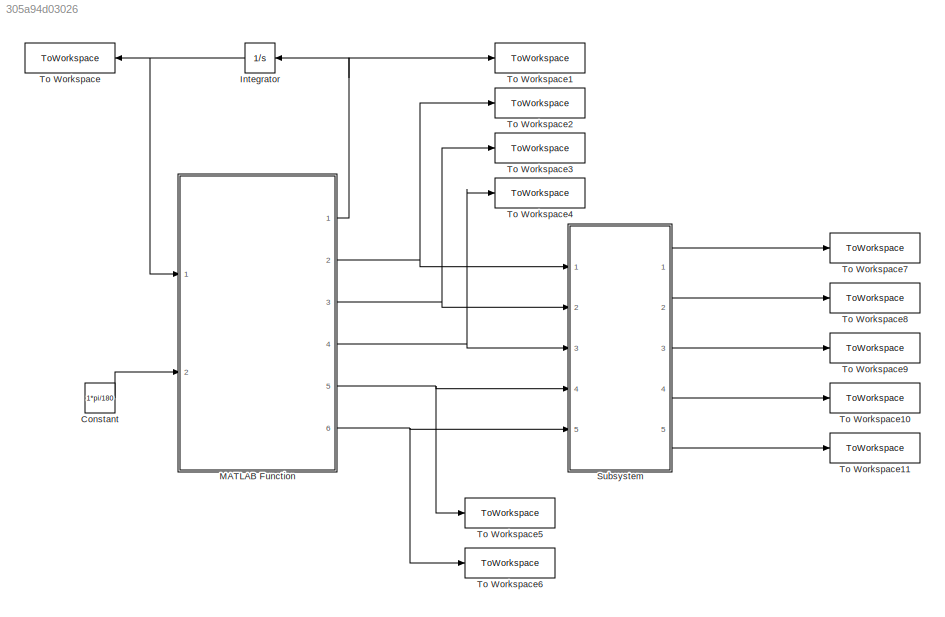
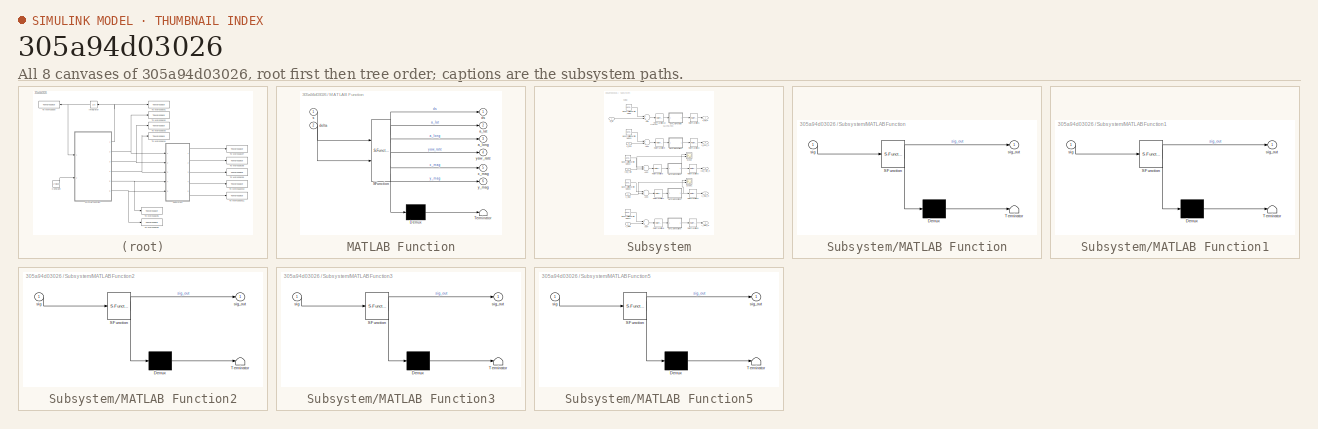
[diagram: thumbnail index - all 8 canvases of the model, root first then tree order]
MODEL slx_305a94d03026
KIND model
CONFIG AbsTol = auto
CONFIG EnableMultiTasking = off
CONFIG FixedStep = auto
CONFIG MaxStep = 0.01
CONFIG MinStep = auto
CONFIG RelTol = 1e-3
CONFIG SampleTimeConstraint = Unconstrained
CONFIG Solver = ode45
CONFIG SolverName = ode45
CONFIG StartTime = 0.0
CONFIG StopTime = tf
BLOCK [Constant] Constant
  Value = 1*pi/180
BLOCK [Integrator] Integrator
  InitialCondition = initial
  Ports = [1, 1]
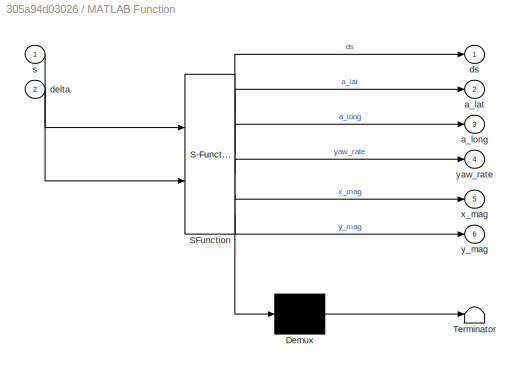
BLOCK [SubSystem] MATLAB Function
  ErrorFcn = Stateflow.Translate.translate
  PermitHierarchicalResolution = ExplicitOnly
  Ports = [2, 6]
  RequestExecContextInheritance = off
  SFBlockType = MATLAB Function
  TreatAsAtomicUnit = on
BLOCK [Demux] MATLAB Function/ Demux 
  Outputs = 1
  Ports = [1, 1]
BLOCK [S-Function] MATLAB Function/ SFunction 
  EnableBusSupport = on
  FunctionName = sf_sfun
  Parameters = Cf,Cr_MR,Cr_R,Jy,Ku_MR,Ku_R,Nf,Nr,U,a,b,d0,m,mu,sf,sr,ti
  PortCounts = [2 7]
  Ports = [2, 7]
  SFcnIsStateOwnerBlock = off
  SFunctionDeploymentMode = off
  Tag = Stateflow S-Function 2
BLOCK [Terminator] MATLAB Function/ Terminator 
BLOCK [Outport] MATLAB Function/a_lat
  IconDisplay = Port number
  Port = 2
BLOCK [Outport] MATLAB Function/a_long
  IconDisplay = Port number
  Port = 3
BLOCK [Inport] MATLAB Function/delta
  IconDisplay = Port number
  Port = 2
BLOCK [Outport] MATLAB Function/ds
  IconDisplay = Port number
BLOCK [Inport] MATLAB Function/s
  IconDisplay = Port number
BLOCK [Outport] MATLAB Function/x_mag
  IconDisplay = Port number
  Port = 5
BLOCK [Outport] MATLAB Function/y_mag
  IconDisplay = Port number
  Port = 6
BLOCK [Outport] MATLAB Function/yaw_rate
  IconDisplay = Port number
  Port = 4
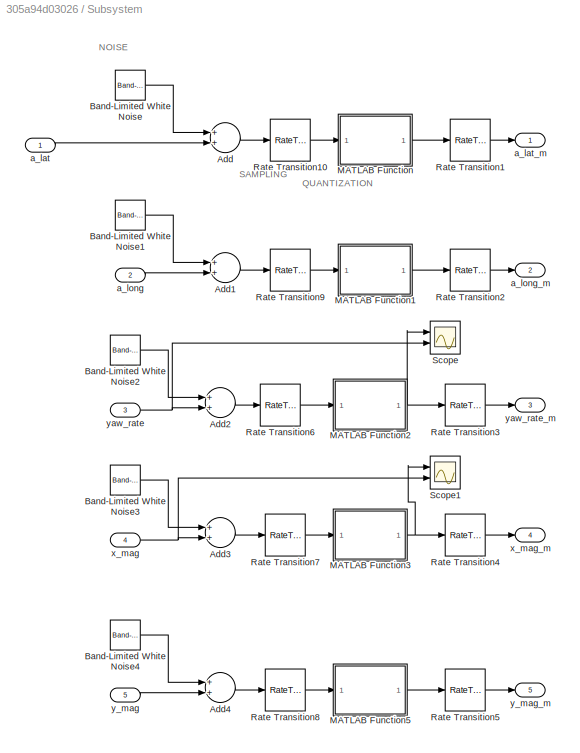
BLOCK [SubSystem] Subsystem
  Ports = [5, 5]
  RequestExecContextInheritance = off
BLOCK [Sum] Subsystem/Add
  InputSameDT = off
  OutDataTypeStr = Inherit: Inherit via internal rule
  Ports = [2, 1]
  SaturateOnIntegerOverflow = off
BLOCK [Sum] Subsystem/Add1
  InputSameDT = off
  OutDataTypeStr = Inherit: Inherit via internal rule
  Ports = [2, 1]
  SaturateOnIntegerOverflow = off
BLOCK [Sum] Subsystem/Add2
  InputSameDT = off
  OutDataTypeStr = Inherit: Inherit via internal rule
  Ports = [2, 1]
  SaturateOnIntegerOverflow = off
BLOCK [Sum] Subsystem/Add3
  InputSameDT = off
  OutDataTypeStr = Inherit: Inherit via internal rule
  Ports = [2, 1]
  SaturateOnIntegerOverflow = off
BLOCK [Sum] Subsystem/Add4
  InputSameDT = off
  OutDataTypeStr = Inherit: Inherit via internal rule
  Ports = [2, 1]
  SaturateOnIntegerOverflow = off
BLOCK [Reference] Subsystem/Band-Limited White Noise  REF=simulink/Sources/Band-Limited
White Noise
  Ports = [0, 1]
  SourceBlock = simulink/Sources/Band-Limited\nWhite Noise
  SourceProductBaseCode = SL
  SourceProductName = Simulink
  SourceType = Band-Limited White Noise.
BLOCK [Reference] Subsystem/Band-Limited White Noise1  REF=simulink/Sources/Band-Limited
White Noise
  Ports = [0, 1]
  SourceBlock = simulink/Sources/Band-Limited\nWhite Noise
  SourceProductBaseCode = SL
  SourceProductName = Simulink
  SourceType = Band-Limited White Noise.
BLOCK [Reference] Subsystem/Band-Limited White Noise2  REF=simulink/Sources/Band-Limited
White Noise
  Ports = [0, 1]
  SourceBlock = simulink/Sources/Band-Limited\nWhite Noise
  SourceProductBaseCode = SL
  SourceProductName = Simulink
  SourceType = Band-Limited White Noise.
BLOCK [Reference] Subsystem/Band-Limited White Noise3  REF=simulink/Sources/Band-Limited
White Noise
  Ports = [0, 1]
  SourceBlock = simulink/Sources/Band-Limited\nWhite Noise
  SourceProductBaseCode = SL
  SourceProductName = Simulink
  SourceType = Band-Limited White Noise.
BLOCK [Reference] Subsystem/Band-Limited White Noise4  REF=simulink/Sources/Band-Limited
White Noise
  Ports = [0, 1]
  SourceBlock = simulink/Sources/Band-Limited\nWhite Noise
  SourceProductBaseCode = SL
  SourceProductName = Simulink
  SourceType = Band-Limited White Noise.
BLOCK [SubSystem] Subsystem/MATLAB Function
  ErrorFcn = Stateflow.Translate.translate
  PermitHierarchicalResolution = ExplicitOnly
  Ports = [1, 1]
  RequestExecContextInheritance = off
  SFBlockType = MATLAB Function
  TreatAsAtomicUnit = on
BLOCK [Demux] Subsystem/MATLAB Function/ Demux 
  Outputs = 1
  Ports = [1, 1]
BLOCK [S-Function] Subsystem/MATLAB Function/ SFunction 
  EnableBusSupport = on
  FunctionName = sf_sfun
  Parameters = accel_res
  PortCounts = [1 2]
  Ports = [1, 2]
  SFcnIsStateOwnerBlock = off
  SFunctionDeploymentMode = off
  Tag = Stateflow S-Function 1
BLOCK [Terminator] Subsystem/MATLAB Function/ Terminator 
BLOCK [Inport] Subsystem/MATLAB Function/sig
  IconDisplay = Port number
BLOCK [Outport] Subsystem/MATLAB Function/sig_out
  IconDisplay = Port number
BLOCK [SubSystem] Subsystem/MATLAB Function1
  ErrorFcn = Stateflow.Translate.translate
  PermitHierarchicalResolution = ExplicitOnly
  Ports = [1, 1]
  RequestExecContextInheritance = off
  SFBlockType = MATLAB Function
  TreatAsAtomicUnit = on
BLOCK [Demux] Subsystem/MATLAB Function1/ Demux 
  Outputs = 1
  Ports = [1, 1]
BLOCK [S-Function] Subsystem/MATLAB Function1/ SFunction 
  EnableBusSupport = on
  FunctionName = sf_sfun
  Parameters = accel_res
  PortCounts = [1 2]
  Ports = [1, 2]
  SFcnIsStateOwnerBlock = off
  SFunctionDeploymentMode = off
  Tag = Stateflow S-Function 3
BLOCK [Terminator] Subsystem/MATLAB Function1/ Terminator 
BLOCK [Inport] Subsystem/MATLAB Function1/sig
  IconDisplay = Port number
BLOCK [Outport] Subsystem/MATLAB Function1/sig_out
  IconDisplay = Port number
BLOCK [SubSystem] Subsystem/MATLAB Function2
  ErrorFcn = Stateflow.Translate.translate
  PermitHierarchicalResolution = ExplicitOnly
  Ports = [1, 1]
  RequestExecContextInheritance = off
  SFBlockType = MATLAB Function
  TreatAsAtomicUnit = on
BLOCK [Demux] Subsystem/MATLAB Function2/ Demux 
  Outputs = 1
  Ports = [1, 1]
BLOCK [S-Function] Subsystem/MATLAB Function2/ SFunction 
  EnableBusSupport = on
  FunctionName = sf_sfun
  Parameters = gyro_res
  PortCounts = [1 2]
  Ports = [1, 2]
  SFcnIsStateOwnerBlock = off
  SFunctionDeploymentMode = off
  Tag = Stateflow S-Function 4
BLOCK [Terminator] Subsystem/MATLAB Function2/ Terminator 
BLOCK [Inport] Subsystem/MATLAB Function2/sig
  IconDisplay = Port number
BLOCK [Outport] Subsystem/MATLAB Function2/sig_out
  IconDisplay = Port number
BLOCK [SubSystem] Subsystem/MATLAB Function3
  ErrorFcn = Stateflow.Translate.translate
  PermitHierarchicalResolution = ExplicitOnly
  Ports = [1, 1]
  RequestExecContextInheritance = off
  SFBlockType = MATLAB Function
  TreatAsAtomicUnit = on
BLOCK [Demux] Subsystem/MATLAB Function3/ Demux 
  Outputs = 1
  Ports = [1, 1]
BLOCK [S-Function] Subsystem/MATLAB Function3/ SFunction 
  EnableBusSupport = on
  FunctionName = sf_sfun
  Parameters = mag_res
  PortCounts = [1 2]
  Ports = [1, 2]
  SFcnIsStateOwnerBlock = off
  SFunctionDeploymentMode = off
  Tag = Stateflow S-Function 5
BLOCK [Terminator] Subsystem/MATLAB Function3/ Terminator 
BLOCK [Inport] Subsystem/MATLAB Function3/sig
  IconDisplay = Port number
BLOCK [Outport] Subsystem/MATLAB Function3/sig_out
  IconDisplay = Port number
BLOCK [SubSystem] Subsystem/MATLAB Function5
  ErrorFcn = Stateflow.Translate.translate
  PermitHierarchicalResolution = ExplicitOnly
  Ports = [1, 1]
  RequestExecContextInheritance = off
  SFBlockType = MATLAB Function
  TreatAsAtomicUnit = on
BLOCK [Demux] Subsystem/MATLAB Function5/ Demux 
  Outputs = 1
  Ports = [1, 1]
BLOCK [S-Function] Subsystem/MATLAB Function5/ SFunction 
  EnableBusSupport = on
  FunctionName = sf_sfun
  Parameters = mag_res
  PortCounts = [1 2]
  Ports = [1, 2]
  SFcnIsStateOwnerBlock = off
  SFunctionDeploymentMode = off
  Tag = Stateflow S-Function 7
BLOCK [Terminator] Subsystem/MATLAB Function5/ Terminator 
BLOCK [Inport] Subsystem/MATLAB Function5/sig
  IconDisplay = Port number
BLOCK [Outport] Subsystem/MATLAB Function5/sig_out
  IconDisplay = Port number
BLOCK [RateTransition] Subsystem/Rate Transition1
BLOCK [RateTransition] Subsystem/Rate Transition10
  OutPortSampleTime = accel_ts
BLOCK [RateTransition] Subsystem/Rate Transition2
BLOCK [RateTransition] Subsystem/Rate Transition3
BLOCK [RateTransition] Subsystem/Rate Transition4
BLOCK [RateTransition] Subsystem/Rate Transition5
BLOCK [RateTransition] Subsystem/Rate Transition6
  OutPortSampleTime = gyro_ts
BLOCK [RateTransition] Subsystem/Rate Transition7
  OutPortSampleTime = mag_ts
BLOCK [RateTransition] Subsystem/Rate Transition8
  OutPortSampleTime = mag_ts
BLOCK [RateTransition] Subsystem/Rate Transition9
  OutPortSampleTime = accel_ts
BLOCK [Scope] Subsystem/Scope
  Floating = off
  NumInputPorts = 2
  Ports = [2]
  ScopeSpecificationString = Simulink.scopes.TimeScopeBlockCfg('CurrentConfiguration', extmgr.ConfigurationSet(extmgr.Configuration('Core','General UI',true),extmgr.Configuration('Core','Source UI',true),extmgr.Configuration('Sources','WiredSimulink',true),extmgr.Configuration('Visuals','Time Domain',true,'SerializedDisplays',{struct('MinYLimReal','0.13336','MaxYLimReal','0.13592','YLabelReal','','MinYLimMag','0.13336','MaxYL...<+1513ch>
BLOCK [Scope] Subsystem/Scope1
  Floating = off
  NumInputPorts = 2
  Ports = [2]
  ScopeSpecificationString = Simulink.scopes.TimeScopeBlockCfg('CurrentConfiguration', extmgr.ConfigurationSet(extmgr.Configuration('Core','General UI',true),extmgr.Configuration('Core','Source UI',true),extmgr.Configuration('Sources','WiredSimulink',true,'DataLoggingVariableName','ScopeData1'),extmgr.Configuration('Visuals','Time Domain',true,'SerializedDisplays',{struct('MinYLimReal','56.06185','MaxYLimReal','2450.49896','Y...<+1445ch>
BLOCK [Inport] Subsystem/a_lat
  IconDisplay = Port number
BLOCK [Outport] Subsystem/a_lat_m
  IconDisplay = Port number
BLOCK [Inport] Subsystem/a_long
  IconDisplay = Port number
  Port = 2
BLOCK [Outport] Subsystem/a_long_m
  IconDisplay = Port number
  Port = 2
BLOCK [Inport] Subsystem/x_mag
  IconDisplay = Port number
  Port = 4
BLOCK [Outport] Subsystem/x_mag_m
  IconDisplay = Port number
  Port = 4
BLOCK [Inport] Subsystem/y_mag
  IconDisplay = Port number
  Port = 5
BLOCK [Outport] Subsystem/y_mag_m
  IconDisplay = Port number
  Port = 5
BLOCK [Inport] Subsystem/yaw_rate
  IconDisplay = Port number
  Port = 3
BLOCK [Outport] Subsystem/yaw_rate_m
  IconDisplay = Port number
  Port = 3
BLOCK [ToWorkspace] To Workspace
  FixptAsFi = on
  MaxDataPoints = inf
  Ports = [1]
  SampleTime = -1
  Save2DSignal = 2-D array (concatenate along first dimension)
  VariableName = s
BLOCK [ToWorkspace] To Workspace1
  FixptAsFi = on
  MaxDataPoints = inf
  Ports = [1]
  SampleTime = -1
  Save2DSignal = 2-D array (concatenate along first dimension)
  VariableName = ds
BLOCK [ToWorkspace] To Workspace10
  FixptAsFi = on
  MaxDataPoints = inf
  Ports = [1]
  SampleTime = -1
  Save2DSignal = 2-D array (concatenate along first dimension)
  VariableName = x_mag_m
BLOCK [ToWorkspace] To Workspace11
  FixptAsFi = on
  MaxDataPoints = inf
  Ports = [1]
  SampleTime = -1
  Save2DSignal = 2-D array (concatenate along first dimension)
  VariableName = y_mag_m
BLOCK [ToWorkspace] To Workspace2
  FixptAsFi = on
  MaxDataPoints = inf
  Ports = [1]
  SampleTime = -1
  Save2DSignal = 2-D array (concatenate along first dimension)
  VariableName = a_lat
BLOCK [ToWorkspace] To Workspace3
  FixptAsFi = on
  MaxDataPoints = inf
  Ports = [1]
  SampleTime = -1
  Save2DSignal = 2-D array (concatenate along first dimension)
  VariableName = a_long
BLOCK [ToWorkspace] To Workspace4
  FixptAsFi = on
  MaxDataPoints = inf
  Ports = [1]
  SampleTime = -1
  Save2DSignal = 2-D array (concatenate along first dimension)
  VariableName = yaw_rate
BLOCK [ToWorkspace] To Workspace5
  FixptAsFi = on
  MaxDataPoints = inf
  Ports = [1]
  SampleTime = -1
  Save2DSignal = 2-D array (concatenate along first dimension)
  VariableName = x_mag
BLOCK [ToWorkspace] To Workspace6
  FixptAsFi = on
  MaxDataPoints = inf
  Ports = [1]
  SampleTime = -1
  Save2DSignal = 2-D array (concatenate along first dimension)
  VariableName = y_mag
BLOCK [ToWorkspace] To Workspace7
  FixptAsFi = on
  MaxDataPoints = inf
  Ports = [1]
  SampleTime = -1
  Save2DSignal = 2-D array (concatenate along first dimension)
  VariableName = a_lat_m
BLOCK [ToWorkspace] To Workspace8
  FixptAsFi = on
  MaxDataPoints = inf
  Ports = [1]
  SampleTime = -1
  Save2DSignal = 2-D array (concatenate along first dimension)
  VariableName = a_long_m
BLOCK [ToWorkspace] To Workspace9
  FixptAsFi = on
  MaxDataPoints = inf
  Ports = [1]
  SampleTime = -1
  Save2DSignal = 2-D array (concatenate along first dimension)
  VariableName = yaw_rate_m
ANNOTATION Subsystem: NOISE
ANNOTATION Subsystem: QUANTIZATION
ANNOTATION Subsystem: SAMPLING
LINE Constant:1 -> MATLAB Function:2
NET Integrator:1 -> MATLAB Function:1, To Workspace:1
NET MATLAB Function:1 -> Integrator:1, To Workspace1:1
NET MATLAB Function:2 -> Subsystem:1, To Workspace2:1
NET MATLAB Function:3 -> Subsystem:2, To Workspace3:1
NET MATLAB Function:4 -> Subsystem:3, To Workspace4:1
NET MATLAB Function:5 -> Subsystem:4, To Workspace5:1
NET MATLAB Function:6 -> Subsystem:5, To Workspace6:1
LINE Subsystem/Add1:1 -> Subsystem/Rate Transition9:1
LINE Subsystem/Add2:1 -> Subsystem/Rate Transition6:1
LINE Subsystem/Add3:1 -> Subsystem/Rate Transition7:1
LINE Subsystem/Add4:1 -> Subsystem/Rate Transition8:1
LINE Subsystem/Add:1 -> Subsystem/Rate Transition10:1
LINE Subsystem/Band-Limited White Noise1:1 -> Subsystem/Add1:1
LINE Subsystem/Band-Limited White Noise2:1 -> Subsystem/Add2:1
LINE Subsystem/Band-Limited White Noise3:1 -> Subsystem/Add3:1
LINE Subsystem/Band-Limited White Noise4:1 -> Subsystem/Add4:1
LINE Subsystem/Band-Limited White Noise:1 -> Subsystem/Add:1
LINE Subsystem/MATLAB Function1:1 -> Subsystem/Rate Transition2:1
NET Subsystem/MATLAB Function2:1 -> Subsystem/Rate Transition3:1, Subsystem/Scope:1
NET Subsystem/MATLAB Function3:1 -> Subsystem/Rate Transition4:1, Subsystem/Scope1:1
LINE Subsystem/MATLAB Function5:1 -> Subsystem/Rate Transition5:1
LINE Subsystem/MATLAB Function:1 -> Subsystem/Rate Transition1:1
LINE Subsystem/Rate Transition10:1 -> Subsystem/MATLAB Function:1
LINE Subsystem/Rate Transition1:1 -> Subsystem/a_lat_m:1
LINE Subsystem/Rate Transition2:1 -> Subsystem/a_long_m:1
LINE Subsystem/Rate Transition3:1 -> Subsystem/yaw_rate_m:1
LINE Subsystem/Rate Transition4:1 -> Subsystem/x_mag_m:1
LINE Subsystem/Rate Transition5:1 -> Subsystem/y_mag_m:1
LINE Subsystem/Rate Transition6:1 -> Subsystem/MATLAB Function2:1
LINE Subsystem/Rate Transition7:1 -> Subsystem/MATLAB Function3:1
LINE Subsystem/Rate Transition8:1 -> Subsystem/MATLAB Function5:1
LINE Subsystem/Rate Transition9:1 -> Subsystem/MATLAB Function1:1
LINE Subsystem/a_lat:1 -> Subsystem/Add:2
LINE Subsystem/a_long:1 -> Subsystem/Add1:2
NET Subsystem/x_mag:1 -> Subsystem/Add3:2, Subsystem/Scope1:2
LINE Subsystem/y_mag:1 -> Subsystem/Add4:2
NET Subsystem/yaw_rate:1 -> Subsystem/Add2:2, Subsystem/Scope:2
LINE Subsystem:1 -> To Workspace7:1
LINE Subsystem:2 -> To Workspace8:1
LINE Subsystem:3 -> To Workspace9:1
LINE Subsystem:4 -> To Workspace10:1
LINE Subsystem:5 -> To Workspace11:1
note: NET lines group one-source signal fan-out (src -> all destinations, sorted); 1:1 wires keep LINE
CHART Subsystem/MATLAB Function states=1 transitions=1
  STATE_LABEL 'eML_blk_kernel()'
  STATE_LABEL 'SCRIPT:\nfunction sig_out = accel_quant(sig, accel_res)\n% based on 16-bit signal with +/- 4g\nsig_out = round(sig/accel_res)*accel_res;\n'
CHART MATLAB Function states=1 transitions=1
  STATE_LABEL 'eML_blk_kernel()'
  STATE_LABEL 'SCRIPT:\n%% Equations file for simulation 2 - Planar handling model.  \nfunction [ds, a_lat, a_long, yaw_rate, x_mag, y_mag] = eqns(s, delta, m, b, a, Cf, Jy, U, Ku_MR, Cr_MR, mu, Ku_R, Cr_R, sf, sr, Nf, Nr, ti, d0)\n\n\n%% Variable initialization - omega = theta_dot\n% Reference car\nV = s(1);\ntheta = s(2);\nomega = s(3);\nx = s(4);\ny = s(5);\n\n\nds = zeros(5,1);\next = zeros(10,1);\n\n%% Inputs\n% Delta\n% if t...<+2402ch>'
CHART Subsystem/MATLAB Function1 states=1 transitions=1
  STATE_LABEL 'eML_blk_kernel()'
  STATE_LABEL 'SCRIPT:\nfunction sig_out = accel_quant(sig, accel_res)\n% based on 16-bit signal with +/- 4g\nsig_out = round(sig/accel_res)*accel_res;\n'
CHART Subsystem/MATLAB Function2 states=1 transitions=1
  STATE_LABEL 'eML_blk_kernel()'
  STATE_LABEL 'SCRIPT:\nfunction sig_out = gyro_quant(sig, gyro_res)\n% based on 16-bit signal with +/- 4g\nsig_out = round(sig/gyro_res)*gyro_res;\n'
CHART Subsystem/MATLAB Function3 states=1 transitions=1
  STATE_LABEL 'eML_blk_kernel()'
  STATE_LABEL 'SCRIPT:\nfunction sig_out = mag_quant(sig, mag_res)\n% based on 16-bit signal with +/- 4g\nsig_out = round(sig/mag_res)*mag_res;\n'
CHART Subsystem/MATLAB Function5 states=1 transitions=1
  STATE_LABEL 'eML_blk_kernel()'
  STATE_LABEL 'SCRIPT:\nfunction sig_out = mag_quant(sig, mag_res)\n% based on 16-bit signal with +/- 4g\nsig_out = round(sig/mag_res)*mag_res;\n'
